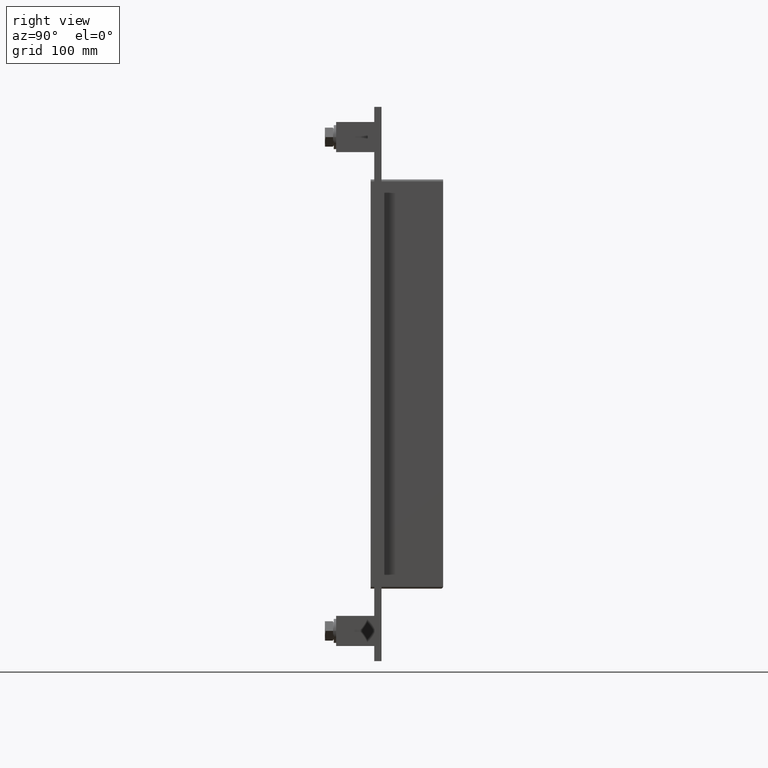
[diagram: clean part render]
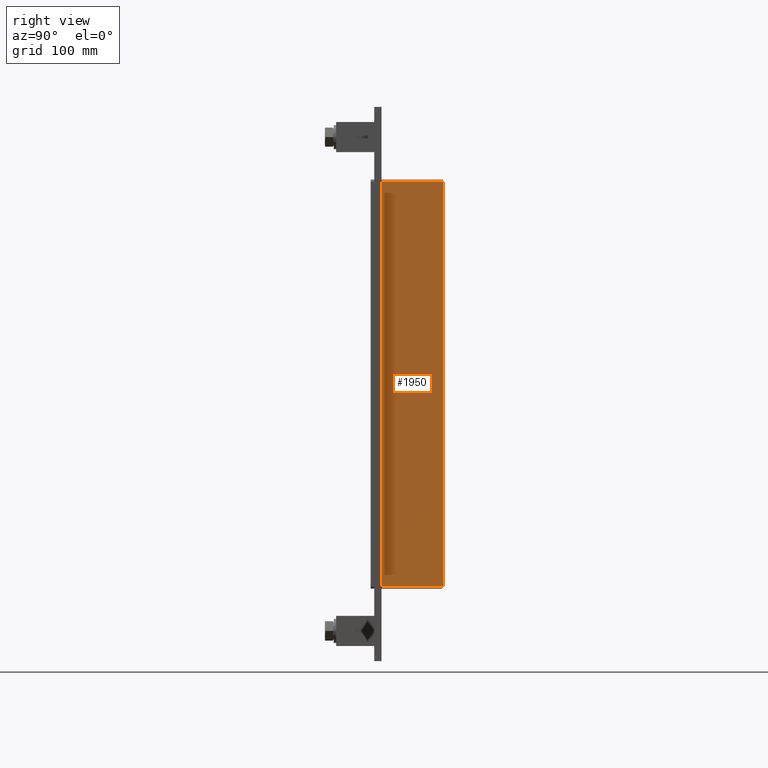
[diagram: same view with one face highlighted and labeled with its STEP entity id]
A machine part, right view. The second image highlights one B-rep face of the part: STEP entity #1950.
In plain terms, the highlighted planar face has unit normal (1, 0, 0).
Its self-contained STEP definition (entity closure, byte-faithful):
#896=CARTESIAN_POINT('',(131.5,57.0,-167.5));
#897=VERTEX_POINT('',#896);
#929=CARTESIAN_POINT('',(131.5,57.0,167.50000000000003));
#930=VERTEX_POINT('',#929);
#938=CARTESIAN_POINT('',(131.5,57.0,167.50000000000003));
#939=DIRECTION('',(0.0,0.0,-1.0));
#940=VECTOR('',#939,335.0);
#941=LINE('',#938,#940);
#942=EDGE_CURVE('',#930,#897,#941,.T.);
#1274=CARTESIAN_POINT('',(131.5,6.000000000000001,-167.5));
#1275=VERTEX_POINT('',#1274);
#1283=CARTESIAN_POINT('',(131.5,6.000000000000001,167.50000000000003));
#1284=VERTEX_POINT('',#1283);
#1285=CARTESIAN_POINT('',(131.5,6.000000000000001,167.50000000000006));
#1286=DIRECTION('',(0.0,0.0,-1.0));
#1287=VECTOR('',#1286,335.00000000000006);
#1288=LINE('',#1285,#1287);
#1289=EDGE_CURVE('',#1284,#1275,#1288,.T.);
#1635=CARTESIAN_POINT('',(131.5,57.0,-167.5));
#1636=DIRECTION('',(0.0,-1.0,0.0));
#1637=VECTOR('',#1636,51.0);
#1638=LINE('',#1635,#1637);
#1639=EDGE_CURVE('',#897,#1275,#1638,.T.);
#1928=CARTESIAN_POINT('',(131.5,6.000000000000001,167.50000000000003));
#1929=DIRECTION('',(0.0,1.0,0.0));
#1930=VECTOR('',#1929,51.0);
#1931=LINE('',#1928,#1930);
#1932=EDGE_CURVE('',#1284,#930,#1931,.T.);
#1939=CARTESIAN_POINT('',(131.5,0.0,169.50000000000003));
#1940=DIRECTION('',(1.0,0.0,0.0));
#1941=DIRECTION('',(0.0,0.0,-1.0));
#1942=AXIS2_PLACEMENT_3D('',#1939,#1940,#1941);
#1943=PLANE('',#1942);
#1944=ORIENTED_EDGE('',*,*,#1289,.T.);
#1945=ORIENTED_EDGE('',*,*,#1639,.F.);
#1946=ORIENTED_EDGE('',*,*,#942,.F.);
#1947=ORIENTED_EDGE('',*,*,#1932,.F.);
#1948=EDGE_LOOP('',(#1944,#1945,#1946,#1947));
#1949=FACE_OUTER_BOUND('',#1948,.T.);
#1950=ADVANCED_FACE('',(#1949),#1943,.T.);